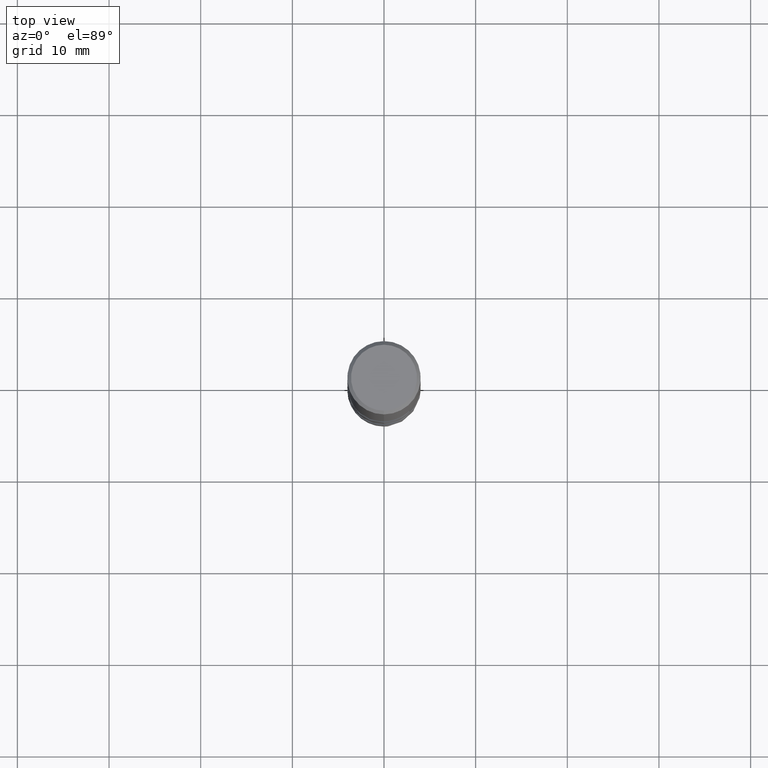
[diagram: clean part render]
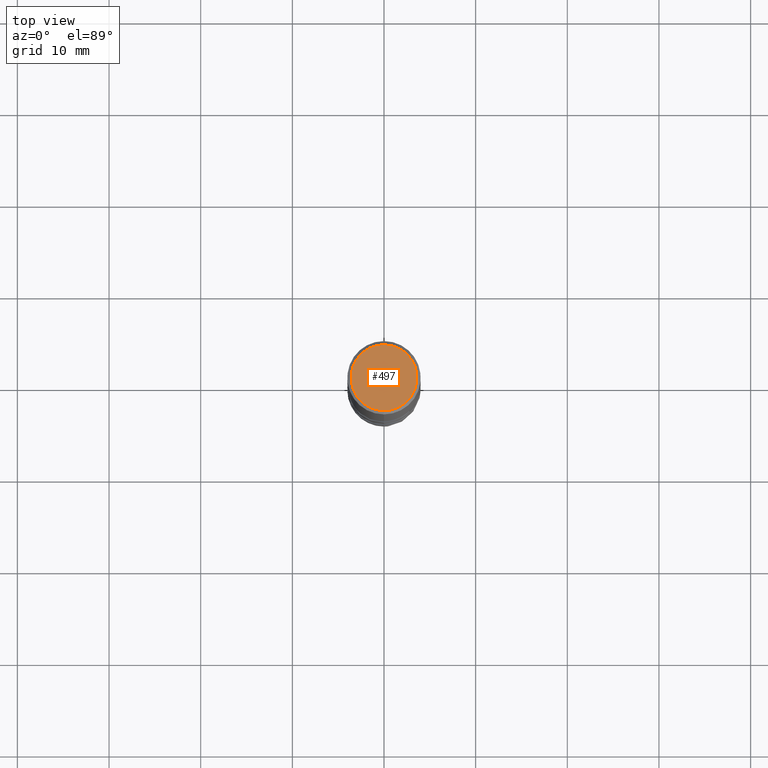
[diagram: same view with one face highlighted and labeled with its STEP entity id]
A machine part, top view. The second image highlights one B-rep face of the part: STEP entity #497.
In plain terms, the highlighted planar face has unit normal (-0, 0, 1).
Its self-contained STEP definition (entity closure, byte-faithful):
#281=EDGE_CURVE('',#683,#493,#750,.T.);
#467=EDGE_CURVE('',#493,#683,#955,.T.);
#493=VERTEX_POINT('',#983);
#497=ADVANCED_FACE('',(#987),#988,.T.);
#683=VERTEX_POINT('',#1188);
#750=CIRCLE('',#1386,3.6);
#955=CIRCLE('',#2679,3.6);
#983=CARTESIAN_POINT('',(4.40858287376056E-016,-3.6,0.0));
#987=FACE_OUTER_BOUND('',#2771,.T.);
#988=PLANE('',#2772);
#1188=CARTESIAN_POINT('',(0.0,3.6,0.0));
#1386=AXIS2_PLACEMENT_3D('',#4898,#4899,#4900);
#2679=AXIS2_PLACEMENT_3D('',#5163,#5164,#5165);
#2771=EDGE_LOOP('',(#5194,#5195));
#2772=AXIS2_PLACEMENT_3D('',#5196,#5197,#5198);
#4898=CARTESIAN_POINT('',(0.0,0.0,0.0));
#4899=DIRECTION('',(0.0,0.0,-1.0));
#4900=DIRECTION('',(0.0,1.0,0.0));
#5163=CARTESIAN_POINT('',(0.0,0.0,0.0));
#5164=DIRECTION('',(0.0,0.0,-1.0));
#5165=DIRECTION('',(0.0,1.0,0.0));
#5194=ORIENTED_EDGE('',*,*,#281,.F.);
#5195=ORIENTED_EDGE('',*,*,#467,.F.);
#5196=CARTESIAN_POINT('',(0.0,1.8,0.0));
#5197=DIRECTION('',(-0.0,0.0,1.0));
#5198=DIRECTION('',(0.0,-1.0,0.0));